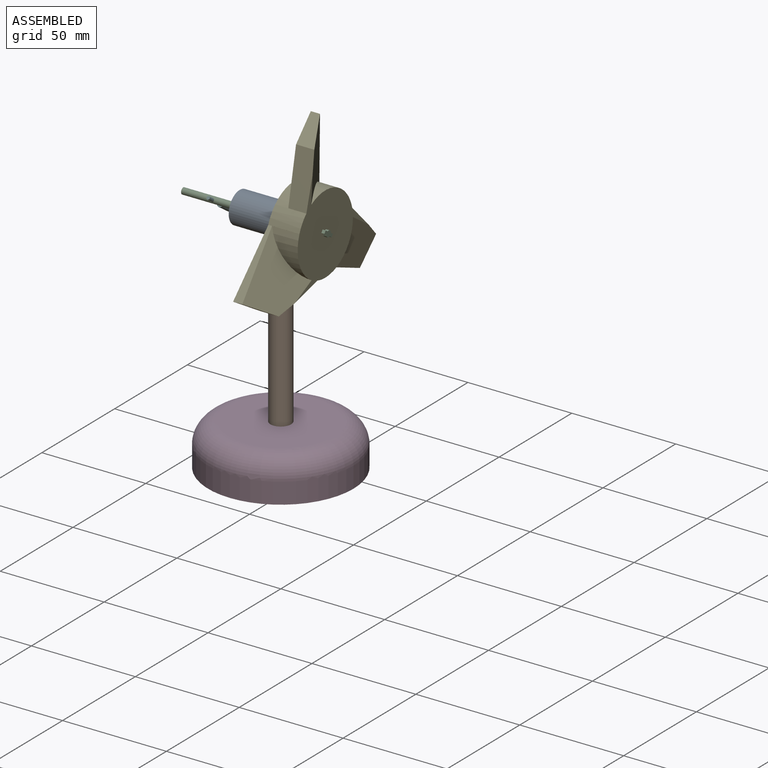
[diagram: assembled view]
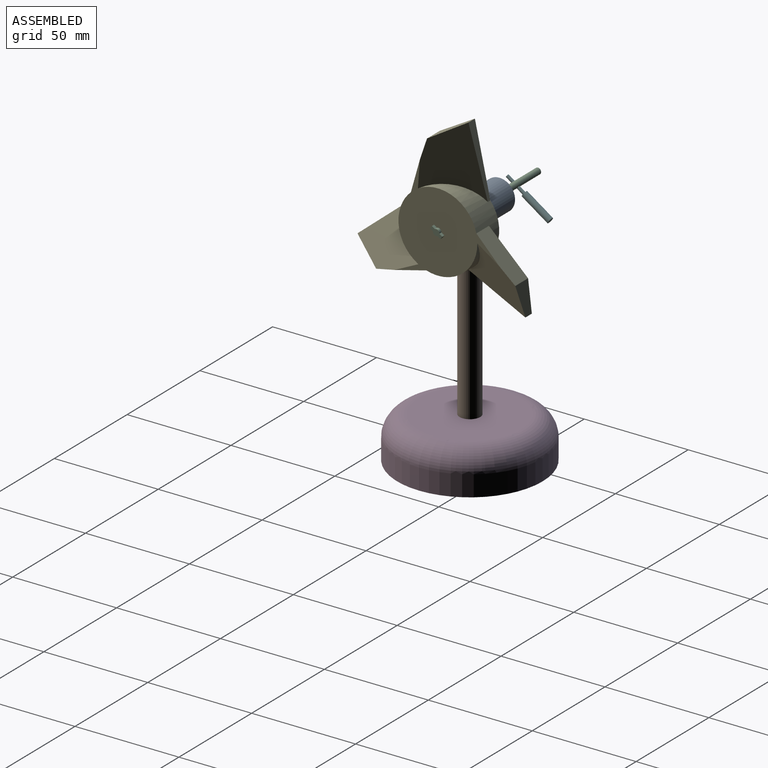
[diagram: assembled view, second angle]
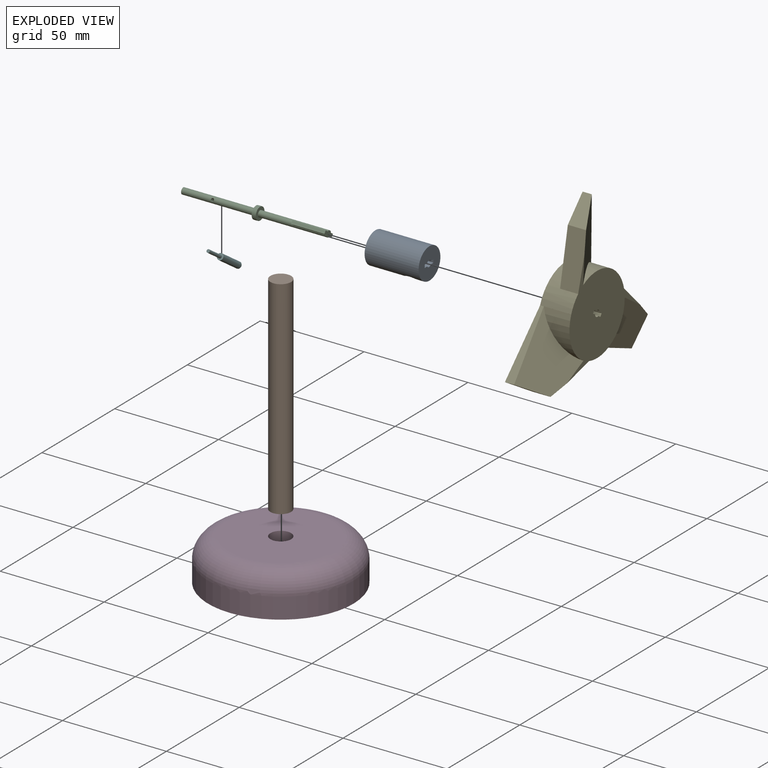
[diagram: exploded view]
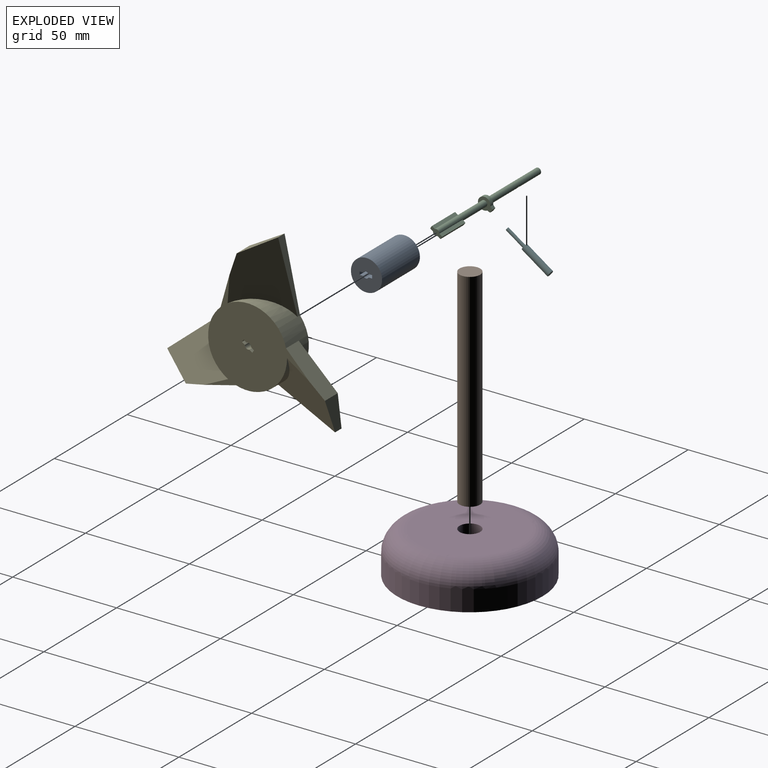
[diagram: exploded view, second angle]
ASSEMBLY  parts=6 mates=6
PART A: 27 faces, bbox 26x15x15 mm
  f0: cylinder r=3.05mm len=7.1mm, axis (-1,0,0), area 52.9mm2, adj f3,f10,f16,f20
  f1: cylinder r=3.05mm len=7.1mm, axis (-1,0,0), area 50.2mm2, adj f6,f10,f16,f17
  f2: cylinder r=1.5mm len=15.9mm, axis (1,0,0), area 50mm2, adj f11,f14,f21,f26
  f3: plane 7.1x1.51mm, normal (0,0,-1), area 10.7mm2, adj f0,f4,f10,f16
  f4: plane 7.1x3mm, normal (0,-1,0), area 21.3mm2, adj f3,f5,f10,f16
  f5: plane 7.1x1.7mm, normal (0,0,1), area 12.1mm2, adj f4,f6,f10,f16
  f6: plane 7.1x0.01mm, normal (0,1,0), area 0.1mm2, adj f1,f5,f10,f16
  f7: cylinder r=3.05mm len=7.1mm, axis (-1,0,0), area 7.9mm2, adj f10,f16,f18,f19
  f8: cylinder r=7.5mm len=26mm, axis (-1,0,0), area 1141.3mm2, adj f10,f11,f12
  f9: cylinder r=1.5mm len=15.9mm, axis (1,0,0), area 50mm2, adj f11,f14,f23,f25
  f10: plane 15x15mm, normal (-1,0,0), area 143.5mm2, adj f0,f1,f3,f4,f5,f6,f7,f8
  f11: plane 15x15mm, normal (1,0,0), area 165mm2, adj f2,f8,f9,f21,f22,f23,f24,f25
  f12: cylinder r=5mm len=10mm, axis (0,0,-1), area 123.1mm2, adj f8,f13
  f13: plane 10x10mm, normal (0,0,-1), area 78.5mm2, adj f12
  f14: plane 10.1x10.1mm, normal (-1,0,0), area 68.4mm2, adj f2,f9,f15,f21,f22,f23,f24,f25
  f15: cylinder r=5.05mm len=10.1mm, axis (-1,0,0), area 95.2mm2, adj f14,f16
  f16: plane 10.1x10.1mm, normal (1,0,0), area 46.9mm2, adj f0,f1,f3,f4,f5,f6,f7,f15
  f17: plane 7.1x0.04mm, normal (0,0,1), area 0.3mm2, adj f1,f10,f16,f18
  f18: plane 7.1x0.2mm, normal (0,1,0), area 1.4mm2, adj f7,f10,f16,f17
  f19: plane 7.1x0.2mm, normal (0,1,0), area 1.4mm2, adj f7,f10,f16,f20
  f20: plane 7.1x0.04mm, normal (0,0,-1), area 0.3mm2, adj f0,f10,f16,f19
  f21: plane 15.9x1.7mm, normal (0,0,1), area 27mm2, adj f2,f11,f14,f22
  f22: plane 15.9x1.5mm, normal (0,1,0), area 23.9mm2, adj f11,f14,f21,f23
  f23: plane 15.9x1.7mm, normal (0,0,-1), area 27mm2, adj f9,f11,f14,f22
  f24: plane 15.9x1.5mm, normal (0,-1,0), area 23.9mm2, adj f11,f14,f25,f26
  f25: plane 15.9x1.7mm, normal (0,0,-1), area 27mm2, adj f9,f11,f14,f24
  f26: plane 15.9x1.7mm, normal (0,0,1), area 27mm2, adj f2,f11,f14,f24
PART B: 3 faces, bbox 10x10x100 mm
  f0: cylinder r=5mm len=100mm, axis (0,0,-1), area 3141.6mm2, adj f1,f2
  f1: plane 10x10mm, normal (0,0,1), area 78.5mm2, adj f0
  f2: plane 10x10mm, normal (0,0,-1), area 78.5mm2, adj f0
PART C: 20 faces, bbox 70x7.2x6 mm
  f0: cylinder r=1.5mm len=33mm, axis (1,0,0), area 260.8mm2, adj f6,f10,f12,f13,f14,f15,f17,f19
  f1: cylinder r=3mm len=6mm, axis (-1,0,0), area 32.2mm2, adj f2,f5,f6,f7
  f2: plane 2x1.48mm, normal (0,0.23,-0.97), area 3mm2, adj f1,f3,f6,f7
  f3: plane 2x0.97mm, normal (0,1,-0.02), area 1.9mm2, adj f2,f4,f6,f7
  f4: plane 2x0.97mm, normal (0,1,0), area 1.9mm2, adj f3,f5,f6,f7
  f5: plane 2x1.47mm, normal (0,0.25,0.97), area 3mm2, adj f1,f4,f6,f7
  f6: plane 7.17x6mm, normal (1,0,0), area 24.1mm2, adj f0,f1,f2,f3,f4,f5
  f7: plane 7.17x6mm, normal (-1,0,0), area 24.1mm2, adj f1,f2,f3,f4,f5,f9
  f8: plane 3x3mm, normal (-1,0,0), area 7.1mm2, adj f9
  f9: cylinder r=1.5mm len=35mm, axis (1,0,0), area 326.1mm2, adj f7,f8,f11
  f10: plane 6x3mm, normal (1,0,0), area 11.8mm2, adj f0,f12,f13,f15,f16,f17,f18
  f11: cylinder r=0.75mm len=3mm, axis (0,1,0), area 12.9mm2, adj f9
  f12: plane 16x1.7mm, normal (0,0,-1), area 27.2mm2, adj f0,f10,f14,f18
  f13: plane 16x1.7mm, normal (0,0,1), area 27.2mm2, adj f0,f10,f14,f18
  f14: plane 1.7x1.5mm, normal (-1,0,0), area 2.3mm2, adj f0,f12,f13,f18
  f15: plane 16x1.7mm, normal (0,0,-1), area 27.2mm2, adj f0,f10,f16,f19
  f16: plane 16x1.5mm, normal (0,1,0), area 24mm2, adj f10,f15,f17,f19
  f17: plane 16x1.7mm, normal (0,0,1), area 27.2mm2, adj f0,f10,f16,f19
  f18: plane 16x1.5mm, normal (0,-1,0), area 24mm2, adj f10,f12,f13,f14
  f19: plane 1.7x1.5mm, normal (-1,0,0), area 2.3mm2, adj f0,f15,f16,f17
PART D: 6 faces, bbox 75.8x75.8x20 mm
  f0: cylinder r=35mm len=70mm, axis (0,0,-1), area 2199.1mm2, adj f2,f3
  f1: plane 50x50mm, normal (0,0,1), area 1885mm2, adj f3,f4
  f2: plane 70x70mm, normal (0,0,-1), area 3848.5mm2, adj f0
  f3: torus R=25mm, axis (0,0,1), area 3095.7mm2, adj f0,f1
  f4: cylinder r=5mm len=15mm, axis (0,0,-1), area 471.2mm2, adj f1,f5
  f5: plane 10x10mm, normal (0,0,1), area 78.5mm2, adj f4
PART E: 32 faces, bbox 15x75.3x81.7 mm
  f0: cylinder r=1.5mm len=15mm, axis (1,0,0), area 47.1mm2, adj f1,f11,f26,f28
  f1: plane 51.91x49.18mm, normal (1,0,0), area 1182.4mm2, adj f0,f2,f3,f4,f6,f7,f8,f10
  f2: cylinder r=19mm len=19.99mm, axis (-1,0,0), area 182.7mm2, adj f1,f14,f15
  f3: cylinder r=19mm len=22.65mm, axis (-1,0,0), area 182.7mm2, adj f1,f20,f21
  f4: cylinder r=19mm len=38mm, axis (-1,0,0), area 683.1mm2, adj f1,f5,f8,f10,f11,f16,f17,f18
  f5: plane 34.27x27.82mm, normal (-0.98,0,0.22), area 525.9mm2, adj f4,f8,f9,f10
  f6: plane 34.16x24.62mm, normal (0.88,0,-0.47), area 559.4mm2, adj f1,f7,f8,f9,f10,f12
  f7: plane 13.2x0mm, normal (0,1,0), area 0mm2, adj f1,f6,f8,f12
  f8: plane 34.16x14.97mm, normal (0,0.24,-0.97), area 109.1mm2, adj f1,f4,f5,f6,f7,f9
  f9: plane 14.05x11.96mm, normal (0,0.84,0.54), area 110.4mm2, adj f5,f6,f8,f10
  f10: plane 25.24x9.87mm, normal (0,0.2,0.98), area 233.9mm2, adj f1,f4,f5,f6,f9
  f11: plane 38x38mm, normal (-1,0,0), area 1122.4mm2, adj f0,f4,f25,f26,f27,f28,f29,f30
  f12: cylinder r=19mm len=24.62mm, axis (-1,0,0), area 182.7mm2, adj f1,f6,f7
  f13: plane 16.68x11.96mm, normal (0,0.05,-1), area 110.4mm2, adj f14,f16,f17,f18
  f14: plane 33.87x29.66mm, normal (0.88,-0.41,0.24), area 559.4mm2, adj f1,f2,f13,f15,f17,f18
  f15: plane 13.2x0mm, normal (0,-0.5,-0.87), area 0mm2, adj f1,f2,f14,f17
  f16: plane 33.87x33.81mm, normal (-0.98,0.19,-0.11), area 525.9mm2, adj f4,f13,f17,f18
  f17: plane 33.87x14.97mm, normal (0,-0.96,0.27), area 109.1mm2, adj f1,f4,f13,f14,f15,f16
  f18: plane 19.26x17.13mm, normal (0,0.75,-0.66), area 233.9mm2, adj f1,f4,f13,f14,f16
  f19: plane 39.31x32.15mm, normal (-0.98,-0.19,-0.11), area 525.9mm2, adj f4,f22,f23,f24
  f20: plane 35.31x32.15mm, normal (0.88,0.41,0.24), area 559.4mm2, adj f1,f3,f21,f22,f23,f24
  f21: plane 13.2x0mm, normal (0,-0.5,0.87), area 0mm2, adj f1,f3,f20,f22
  f22: plane 25.3x24.5mm, normal (0,0.72,0.7), area 109.1mm2, adj f1,f4,f19,f20,f21,f23
  f23: plane 14.85x11.96mm, normal (0,-0.89,0.46), area 110.4mm2, adj f19,f20,f22,f24
  f24: plane 24.46x9.87mm, normal (0,-0.95,-0.31), area 233.9mm2, adj f1,f4,f19,f20,f23
  f25: cylinder r=1.5mm len=15mm, axis (1,0,0), area 47.1mm2, adj f1,f11,f27,f30
  f26: plane 15x1.7mm, normal (0,0,1), area 25.5mm2, adj f0,f1,f11,f31
  f27: plane 15x1.7mm, normal (0,0,-1), area 25.5mm2, adj f1,f11,f25,f31
  f28: plane 15x1.7mm, normal (0,0,1), area 25.5mm2, adj f0,f1,f11,f29
  f29: plane 15x1.5mm, normal (0,-1,0), area 22.5mm2, adj f1,f11,f28,f30
  f30: plane 15x1.7mm, normal (0,0,-1), area 25.5mm2, adj f1,f11,f25,f29
  f31: plane 15x1.5mm, normal (0,1,0), area 22.5mm2, adj f1,f11,f26,f27
PART F: 5 faces, bbox 3x25x3 mm
  f0: plane 3x3mm, normal (0,1,0), area 7.1mm2, adj f2
  f1: plane 3x3mm, normal (0,-1,0), area 5.3mm2, adj f2,f4
  f2: cylinder r=1.5mm len=15mm, axis (0,-1,0), area 141.4mm2, adj f0,f1
  f3: plane 1.5x1.5mm, normal (0,-1,0), area 1.8mm2, adj f4
  f4: cylinder r=0.75mm len=10mm, axis (0,1,0), area 47.1mm2, adj f1,f3
PLACE A at identity
PLACE B at identity
PLACE C rot(axis=(-1,0,0),34.1deg) t=(0.1,-60.4,18.52)mm
PLACE D at identity fixed
PLACE E rot(axis=(-1,0,0),34.1deg) t=(0.6,-60.4,18.52)mm
PLACE F rot(axis=(-1,0,0),34.1deg) t=(0.1,-57.63,16.64)mm
MATE revolute C.f1 <-> A.f0  axis (1,0,0) through (-9.9,-0.05,107.67)mm
MATE fastened D.f4 <-> B.f0  axis (0,0,1) through (0,0,5)mm
MATE fastened E.f0 <-> C.f0  axis (-1,0,0) through (6.6,-0.06,107.68)mm
MATE fastened B.f0 <-> A.f12  axis (0,0,1) through (0,0,105)mm
MATE fastened C.f11 <-> F.f2  axis (0,0.83,-0.56) through (-31.9,-0.21,107.46)mm
MATE cylindrical E.f0 <-> C.f0  axis (-1,0,0) through (6.6,-0.06,107.68)mm
